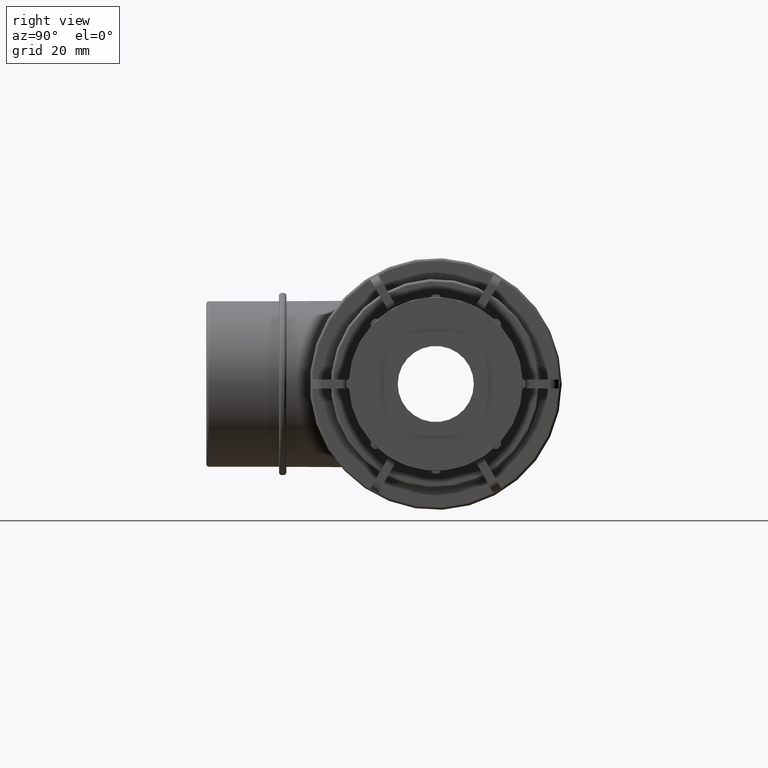
[diagram: clean part render]
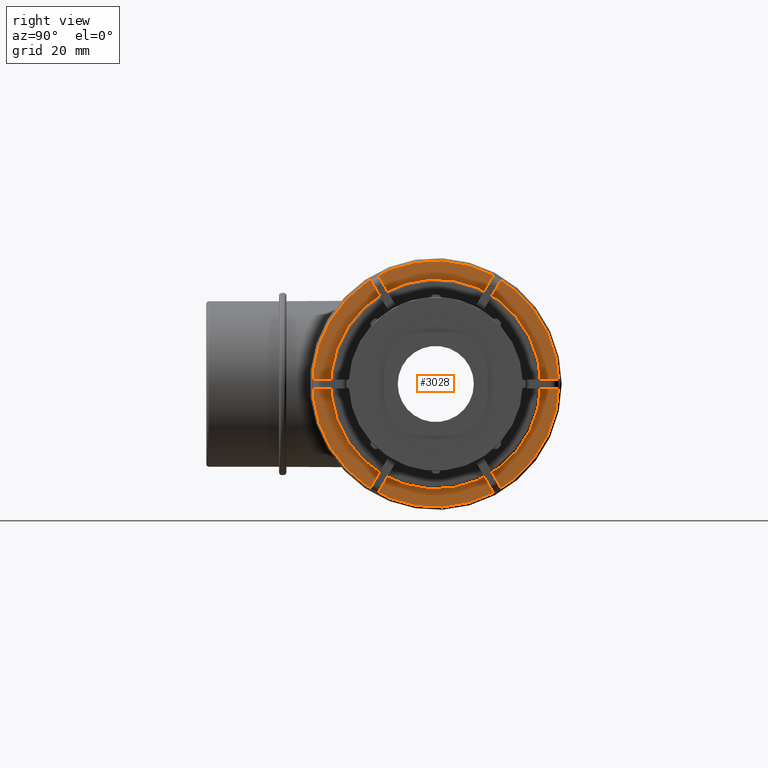
[diagram: same view with one face highlighted and labeled with its STEP entity id]
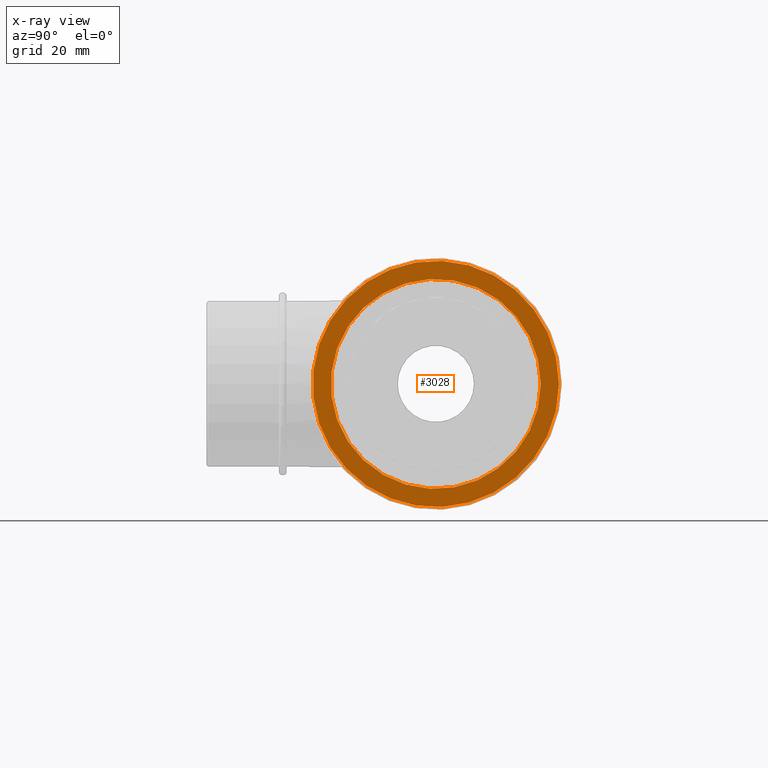
[diagram: x-ray of the same camera — body ghosted, the highlighted face saturated]
A machine part, right view. The second image highlights one B-rep face of the part: STEP entity #3028.
The next image is the same camera in x-ray: the body ghosted, the highlighted face saturated — about 0% of this face is hidden behind the body in this view.
In plain terms, the highlighted planar face has unit normal (1, 0, 0).
Its self-contained STEP definition (entity closure, byte-faithful):
#429=PLANE('',#3272);
#533=CIRCLE('',#3271,44.);
#534=CIRCLE('',#3273,37.5);
#762=FACE_BOUND('',#1058,.T.);
#821=FACE_OUTER_BOUND('',#1057,.T.);
#1057=EDGE_LOOP('',(#2111));
#1058=EDGE_LOOP('',(#2112));
#1358=VERTEX_POINT('',#4766);
#1359=VERTEX_POINT('',#4769);
#1652=EDGE_CURVE('',#1358,#1358,#533,.T.);
#1653=EDGE_CURVE('',#1359,#1359,#534,.T.);
#2111=ORIENTED_EDGE('',*,*,#1652,.F.);
#2112=ORIENTED_EDGE('',*,*,#1653,.F.);
#3028=ADVANCED_FACE('',(#821,#762),#429,.T.);
#3271=AXIS2_PLACEMENT_3D('',#4767,#3700,#3701);
#3272=AXIS2_PLACEMENT_3D('',#4768,#3702,#3703);
#3273=AXIS2_PLACEMENT_3D('',#4770,#3704,#3705);
#3700=DIRECTION('center_axis',(-1.,0.,0.));
#3701=DIRECTION('ref_axis',(0.,-1.,1.83697019872103E-16));
#3702=DIRECTION('center_axis',(1.,0.,0.));
#3703=DIRECTION('ref_axis',(0.,0.,-1.));
#3704=DIRECTION('center_axis',(1.,0.,0.));
#3705=DIRECTION('ref_axis',(0.,0.,-1.));
#4766=CARTESIAN_POINT('',(51.2,44.,-1.34711147906209E-14));
#4767=CARTESIAN_POINT('Origin',(51.2,0.,0.));
#4768=CARTESIAN_POINT('Origin',(51.2,37.5,0.));
#4769=CARTESIAN_POINT('',(51.2,37.5,0.));
#4770=CARTESIAN_POINT('Origin',(51.2,0.,0.));